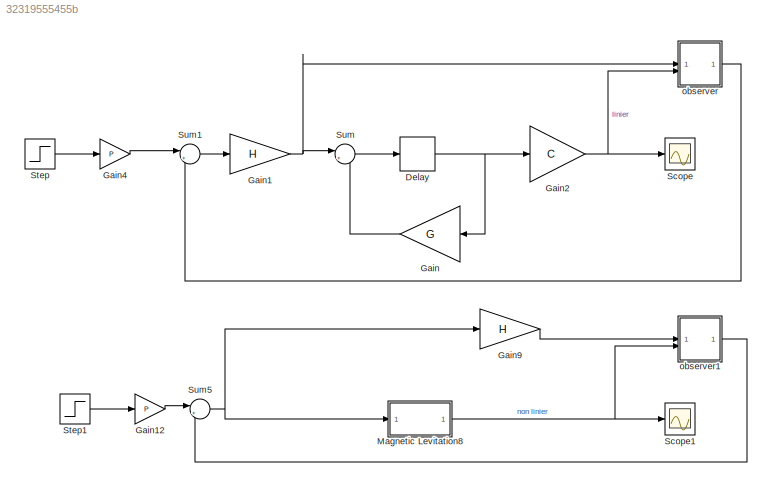
MODEL slx_32319555455b
KIND model
CONFIG AbsTol = auto
CONFIG EnableMultiTasking = off
CONFIG FixedStep = 1e-5
CONFIG MaxStep = auto
CONFIG MinStep = auto
CONFIG RelTol = 1e-3
CONFIG SampleTimeConstraint = Unconstrained
CONFIG SolverName = FixedStepAuto
CONFIG StartTime = 0.0
CONFIG StopTime = 0.1
BLOCK [Delay] Delay
  DelayLength = 1
  InputPortMap = u0
  SampleTime = Ts
BLOCK [Gain] Gain
  Gain = G
  Multiplication = Matrix(K*u) (u vector)
  NameLocation = top
BLOCK [Gain] Gain1
  Gain = H
  Multiplication = Matrix(K*u) (u vector)
BLOCK [Gain] Gain12
  Gain = P
BLOCK [Gain] Gain2
  Gain = C
  Multiplication = Matrix(K*u) (u vector)
BLOCK [Gain] Gain4
  Gain = P
BLOCK [Gain] Gain9
  Gain = H
  Multiplication = Matrix(K*u) (u vector)
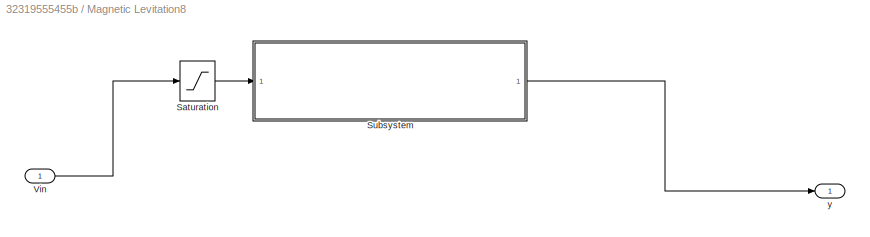
BLOCK [SubSystem] Magnetic Levitation8
  Permissions = ReadOnly
BLOCK [Saturate] Magnetic Levitation8/Saturation
  LowerLimit = -6
  UpperLimit = 10
  ZeroCross = off
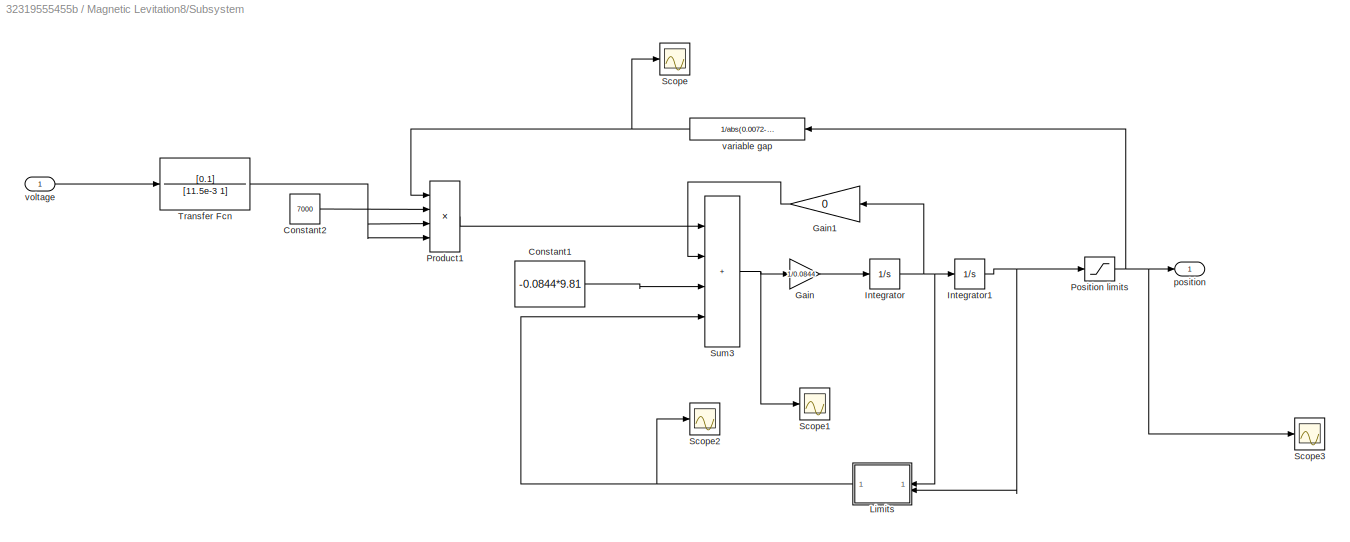
BLOCK [SubSystem] Magnetic Levitation8/Subsystem
BLOCK [Constant] Magnetic Levitation8/Subsystem/Constant1
  Value = -0.0844*9.81
BLOCK [Constant] Magnetic Levitation8/Subsystem/Constant2
  Value = 7000
BLOCK [Gain] Magnetic Levitation8/Subsystem/Gain
  Gain = 1/0.0844
BLOCK [Gain] Magnetic Levitation8/Subsystem/Gain1
  Gain = 0
  NameLocation = top
BLOCK [Integrator] Magnetic Levitation8/Subsystem/Integrator
BLOCK [Integrator] Magnetic Levitation8/Subsystem/Integrator1
  LimitOutput = on
  LowerSaturationLimit = 0
  UpperSaturationLimit = 0.005
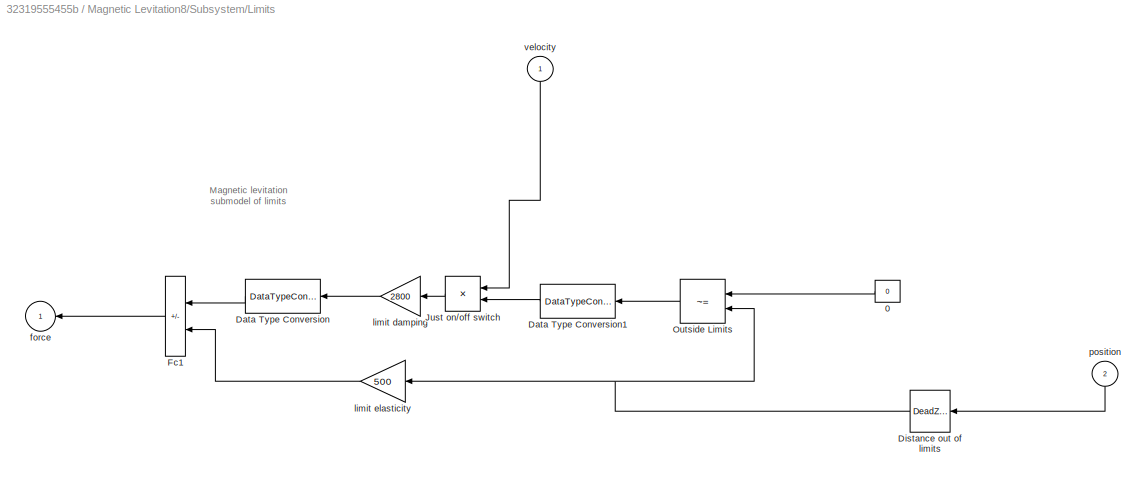
BLOCK [SubSystem] Magnetic Levitation8/Subsystem/Limits
  ShowPortLabels = none
BLOCK [Constant] Magnetic Levitation8/Subsystem/Limits/0
  Value = 0
BLOCK [DataTypeConversion] Magnetic Levitation8/Subsystem/Limits/Data Type Conversion
  NameLocation = top
  OutDataTypeStr = double
  RndMeth = Floor
  SaturateOnIntegerOverflow = off
BLOCK [DataTypeConversion] Magnetic Levitation8/Subsystem/Limits/Data Type Conversion1
  NameLocation = top
  OutDataTypeStr = double
  RndMeth = Floor
  SaturateOnIntegerOverflow = off
BLOCK [DeadZone] Magnetic Levitation8/Subsystem/Limits/Distance out of limits
  LowerValue = 0.0002
  UpperValue = 5e-3
  ZeroCross = off
BLOCK [Sum] Magnetic Levitation8/Subsystem/Limits/Fc1
  IconShape = rectangular
  InputSameDT = on
  Inputs = --
  OutDataTypeStr = Inherit: Same as first input
  SaturateOnIntegerOverflow = on
BLOCK [Product] Magnetic Levitation8/Subsystem/Limits/Just on//off switch 
  InputSameDT = on
  OutDataTypeStr = Inherit: Same as first input
  SaturateOnIntegerOverflow = on
BLOCK [RelationalOperator] Magnetic Levitation8/Subsystem/Limits/Outside Limits
  Operator = ~=
BLOCK [Outport] Magnetic Levitation8/Subsystem/Limits/force
  VectorParamsAs1DForOutWhenUnconnected = off
BLOCK [Gain] Magnetic Levitation8/Subsystem/Limits/limit damping
  Gain = 2800
  OutDataTypeStr = Inherit: Same as input
  ParamDataTypeStr = Inherit: Same as input
  SaturateOnIntegerOverflow = on
BLOCK [Gain] Magnetic Levitation8/Subsystem/Limits/limit elasticity
  Gain = 500
  OutDataTypeStr = Inherit: Same as input
  ParamDataTypeStr = Inherit: Same as input
  SaturateOnIntegerOverflow = on
BLOCK [Inport] Magnetic Levitation8/Subsystem/Limits/position
  NameLocation = right
  Port = 2
BLOCK [Inport] Magnetic Levitation8/Subsystem/Limits/velocity
  NameLocation = right
BLOCK [Saturate] Magnetic Levitation8/Subsystem/Position limits
  LowerLimit = 0.00001
  UpperLimit = 0.00499
  ZeroCross = off
BLOCK [Product] Magnetic Levitation8/Subsystem/Product1
  Inputs = 4
BLOCK [Scope] Magnetic Levitation8/Subsystem/Scope
  Floating = off
  NumInputPorts = 1
  ScopeSpecificationString = Simulink.scopes.TimeScopeBlockCfg('CurrentConfiguration', extmgr.ConfigurationSet(extmgr.Configuration('Core','General UI',true),extmgr.Configuration('Core','Source UI',true),extmgr.Configuration('Sources','WiredSimulink',true,'DataLoggingVariableName','ScopeData1'),extmgr.Configuration('Visuals','Time Domain',true,'SerializedDisplays',{struct('MinYLimReal','-40.54054','MaxYLimReal','374.87487','Y...<+1381ch>
BLOCK [Scope] Magnetic Levitation8/Subsystem/Scope1
  Floating = off
  NumInputPorts = 1
  ScopeSpecificationString = Simulink.scopes.TimeScopeBlockCfg('CurrentConfiguration', extmgr.ConfigurationSet(extmgr.Configuration('Core','General UI',true),extmgr.Configuration('Core','Source UI',true),extmgr.Configuration('Sources','WiredSimulink',true,'DataLoggingVariableName','ScopeData2'),extmgr.Configuration('Visuals','Time Domain',true,'SerializedDisplays',{struct('MinYLimReal','-21376391083219120442781708779858395089...<+3841ch>
BLOCK [Scope] Magnetic Levitation8/Subsystem/Scope2
  Floating = off
  NumInputPorts = 1
  ScopeSpecificationString = Simulink.scopes.TimeScopeBlockCfg('CurrentConfiguration', extmgr.ConfigurationSet(extmgr.Configuration('Core','General UI',true),extmgr.Configuration('Core','Source UI',true),extmgr.Configuration('Sources','WiredSimulink',true,'DataLoggingVariableName','ScopeData3'),extmgr.Configuration('Visuals','Time Domain',true,'SerializedDisplays',{struct('MinYLimReal','-0.1107','MaxYLimReal','1.19629','YLabe...<+1363ch>
BLOCK [Scope] Magnetic Levitation8/Subsystem/Scope3
  Floating = off
  NumInputPorts = 1
  ScopeSpecificationString = Simulink.scopes.TimeScopeBlockCfg('CurrentConfiguration', extmgr.ConfigurationSet(extmgr.Configuration('Core','General UI',true),extmgr.Configuration('Core','Source UI',true),extmgr.Configuration('Sources','WiredSimulink',true,'DataLoggingVariableName','ScopeData2'),extmgr.Configuration('Visuals','Time Domain',true,'SerializedDisplays',{struct('MinYLimReal','-0.00029','MaxYLimReal','0.00267','YLab...<+1402ch>
BLOCK [Sum] Magnetic Levitation8/Subsystem/Sum3
  IconShape = rectangular
  Inputs = ++++
BLOCK [TransferFcn] Magnetic Levitation8/Subsystem/Transfer Fcn
  Denominator = [11.5e-3 1]
  Numerator = [0.1]
BLOCK [Outport] Magnetic Levitation8/Subsystem/position 
  VectorParamsAs1DForOutWhenUnconnected = off
BLOCK [Fcn] Magnetic Levitation8/Subsystem/variable gap
  Expr = 1/abs(0.0072-u)
BLOCK [Inport] Magnetic Levitation8/Subsystem/voltage
BLOCK [Inport] Magnetic Levitation8/Vin
BLOCK [Outport] Magnetic Levitation8/y
  VectorParamsAs1DForOutWhenUnconnected = off
BLOCK [Scope] Scope
  Floating = off
  NumInputPorts = 1
  ScopeSpecificationString = Simulink.scopes.TimeScopeBlockCfg('CurrentConfiguration', extmgr.ConfigurationSet(extmgr.Configuration('Core','General UI',true),extmgr.Configuration('Core','Source UI',true),extmgr.Configuration('Sources','WiredSimulink',true),extmgr.Configuration('Visuals','Time Domain',true,'SerializedDisplays',{struct('MinYLimReal','-0.00025','MaxYLimReal','0.00225','YLabelReal','','MinYLimMag','0.00000','MaxY...<+1545ch>
BLOCK [Scope] Scope1
  Floating = off
  NumInputPorts = 1
  ScopeSpecificationString = Simulink.scopes.TimeScopeBlockCfg('CurrentConfiguration', extmgr.ConfigurationSet(extmgr.Configuration('Core','General UI',true),extmgr.Configuration('Core','Source UI',true),extmgr.Configuration('Sources','WiredSimulink',true,'DataLoggingVariableName','ScopeData1'),extmgr.Configuration('Visuals','Time Domain',true,'SerializedDisplays',{struct('MinYLimReal','-0.00061','MaxYLimReal','0.00561','YLab...<+1639ch>
BLOCK [Step] Step
  After = 0.002
  SampleTime = 0
  Time = 0
BLOCK [Step] Step1
  After = 1e-6
  SampleTime = 0
  Time = 0
BLOCK [Sum] Sum
  Inputs = |++
BLOCK [Sum] Sum1
  Inputs = |+-
BLOCK [Sum] Sum5
  Inputs = |+-
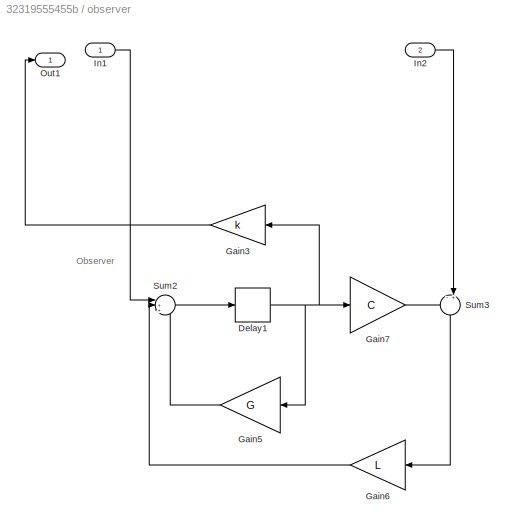
BLOCK [SubSystem] observer
BLOCK [Delay] observer/Delay1
  DelayLength = 1
  InputPortMap = u0
  SampleTime = Ts
BLOCK [Gain] observer/Gain3
  Gain = k
  Multiplication = Matrix(K*u) (u vector)
  NameLocation = top
BLOCK [Gain] observer/Gain5
  Gain = G
  Multiplication = Matrix(K*u) (u vector)
  NameLocation = top
BLOCK [Gain] observer/Gain6
  Gain = L
  NameLocation = top
BLOCK [Gain] observer/Gain7
  Gain = C
  Multiplication = Matrix(K*u) (u vector)
BLOCK [Inport] observer/In1
BLOCK [Inport] observer/In2
  Port = 2
BLOCK [Outport] observer/Out1
BLOCK [Sum] observer/Sum2
  Inputs = |+++
BLOCK [Sum] observer/Sum3
  Inputs = -+|
  NameLocation = left
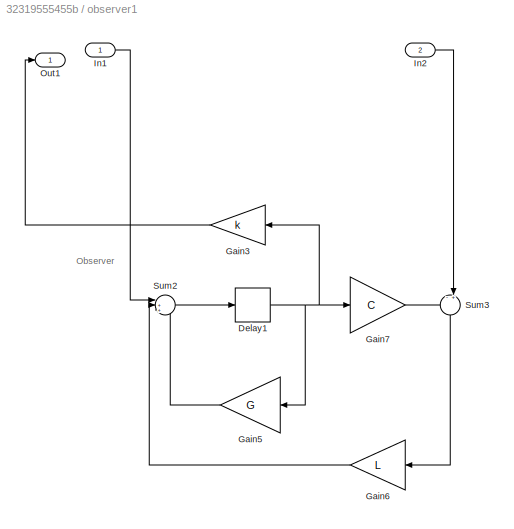
BLOCK [SubSystem] observer1
BLOCK [Delay] observer1/Delay1
  DelayLength = 1
  InputPortMap = u0
  SampleTime = Ts
BLOCK [Gain] observer1/Gain3
  Gain = k
  Multiplication = Matrix(K*u) (u vector)
  NameLocation = top
BLOCK [Gain] observer1/Gain5
  Gain = G
  Multiplication = Matrix(K*u) (u vector)
  NameLocation = top
BLOCK [Gain] observer1/Gain6
  Gain = L
  NameLocation = top
BLOCK [Gain] observer1/Gain7
  Gain = C
  Multiplication = Matrix(K*u) (u vector)
BLOCK [Inport] observer1/In1
BLOCK [Inport] observer1/In2
  Port = 2
BLOCK [Outport] observer1/Out1
BLOCK [Sum] observer1/Sum2
  Inputs = |+++
BLOCK [Sum] observer1/Sum3
  Inputs = -+|
  NameLocation = left
ANNOTATION Magnetic Levitation8/Subsystem/Limits: Magnetic levitation submodel of limits
ANNOTATION observer: Observer
ANNOTATION observer1: Observer
NET Delay:1 -> Gain2:1, Gain:1
LINE Gain12:1 -> Sum5:1
NET Gain1:1 -> Sum:1, observer:1
NET Gain2:1 -> Scope:1, observer:2
LINE Gain4:1 -> Sum1:1
LINE Gain9:1 -> observer1:1
LINE Gain:1 -> Sum:2
LINE Magnetic Levitation8/Saturation:1 -> Magnetic Levitation8/Subsystem:1
LINE Magnetic Levitation8/Subsystem/Constant1:1 -> Magnetic Levitation8/Subsystem/Sum3:3
LINE Magnetic Levitation8/Subsystem/Constant2:1 -> Magnetic Levitation8/Subsystem/Product1:2
LINE Magnetic Levitation8/Subsystem/Gain1:1 -> Magnetic Levitation8/Subsystem/Sum3:2
LINE Magnetic Levitation8/Subsystem/Gain:1 -> Magnetic Levitation8/Subsystem/Integrator:1
NET Magnetic Levitation8/Subsystem/Integrator1:1 -> Magnetic Levitation8/Subsystem/Limits:2, Magnetic Levitation8/Subsystem/Position limits:1
NET Magnetic Levitation8/Subsystem/Integrator:1 -> Magnetic Levitation8/Subsystem/Gain1:1, Magnetic Levitation8/Subsystem/Integrator1:1, Magnetic Levitation8/Subsystem/Limits:1
LINE Magnetic Levitation8/Subsystem/Limits/0:1 -> Magnetic Levitation8/Subsystem/Limits/Outside Limits:1
LINE Magnetic Levitation8/Subsystem/Limits/Data Type Conversion1:1 -> Magnetic Levitation8/Subsystem/Limits/Just on//off switch :2
LINE Magnetic Levitation8/Subsystem/Limits/Data Type Conversion:1 -> Magnetic Levitation8/Subsystem/Limits/Fc1:1
NET Magnetic Levitation8/Subsystem/Limits/Distance out of limits:1 -> Magnetic Levitation8/Subsystem/Limits/Outside Limits:2, Magnetic Levitation8/Subsystem/Limits/limit elasticity:1
LINE Magnetic Levitation8/Subsystem/Limits/Fc1:1 -> Magnetic Levitation8/Subsystem/Limits/force:1
LINE Magnetic Levitation8/Subsystem/Limits/Just on//off switch :1 -> Magnetic Levitation8/Subsystem/Limits/limit damping:1
LINE Magnetic Levitation8/Subsystem/Limits/Outside Limits:1 -> Magnetic Levitation8/Subsystem/Limits/Data Type Conversion1:1
LINE Magnetic Levitation8/Subsystem/Limits/limit damping:1 -> Magnetic Levitation8/Subsystem/Limits/Data Type Conversion:1
LINE Magnetic Levitation8/Subsystem/Limits/limit elasticity:1 -> Magnetic Levitation8/Subsystem/Limits/Fc1:2
LINE Magnetic Levitation8/Subsystem/Limits/position:1 -> Magnetic Levitation8/Subsystem/Limits/Distance out of limits:1
LINE Magnetic Levitation8/Subsystem/Limits/velocity:1 -> Magnetic Levitation8/Subsystem/Limits/Just on//off switch :1
NET Magnetic Levitation8/Subsystem/Limits:1 -> Magnetic Levitation8/Subsystem/Scope2:1, Magnetic Levitation8/Subsystem/Sum3:4
NET Magnetic Levitation8/Subsystem/Position limits:1 -> Magnetic Levitation8/Subsystem/Scope3:1, Magnetic Levitation8/Subsystem/position :1, Magnetic Levitation8/Subsystem/variable gap:1
LINE Magnetic Levitation8/Subsystem/Product1:1 -> Magnetic Levitation8/Subsystem/Sum3:1
NET Magnetic Levitation8/Subsystem/Sum3:1 -> Magnetic Levitation8/Subsystem/Gain:1, Magnetic Levitation8/Subsystem/Scope1:1
NET Magnetic Levitation8/Subsystem/Transfer Fcn:1 -> Magnetic Levitation8/Subsystem/Product1:3, Magnetic Levitation8/Subsystem/Product1:4
NET Magnetic Levitation8/Subsystem/variable gap:1 -> Magnetic Levitation8/Subsystem/Product1:1, Magnetic Levitation8/Subsystem/Scope:1
LINE Magnetic Levitation8/Subsystem/voltage:1 -> Magnetic Levitation8/Subsystem/Transfer Fcn:1
LINE Magnetic Levitation8/Subsystem:1 -> Magnetic Levitation8/y:1
LINE Magnetic Levitation8/Vin:1 -> Magnetic Levitation8/Saturation:1
NET Magnetic Levitation8:1 -> Scope1:1, observer1:2
LINE Step1:1 -> Gain12:1
LINE Step:1 -> Gain4:1
LINE Sum1:1 -> Gain1:1
NET Sum5:1 -> Gain9:1, Magnetic Levitation8:1
LINE Sum:1 -> Delay:1
NET observer/Delay1:1 -> observer/Gain3:1, observer/Gain5:1, observer/Gain7:1
LINE observer/Gain3:1 -> observer/Out1:1
LINE observer/Gain5:1 -> observer/Sum2:3
LINE observer/Gain6:1 -> observer/Sum2:2
LINE observer/Gain7:1 -> observer/Sum3:1
LINE observer/In1:1 -> observer/Sum2:1
LINE observer/In2:1 -> observer/Sum3:2
LINE observer/Sum2:1 -> observer/Delay1:1
LINE observer/Sum3:1 -> observer/Gain6:1
NET observer1/Delay1:1 -> observer1/Gain3:1, observer1/Gain5:1, observer1/Gain7:1
LINE observer1/Gain3:1 -> observer1/Out1:1
LINE observer1/Gain5:1 -> observer1/Sum2:3
LINE observer1/Gain6:1 -> observer1/Sum2:2
LINE observer1/Gain7:1 -> observer1/Sum3:1
LINE observer1/In1:1 -> observer1/Sum2:1
LINE observer1/In2:1 -> observer1/Sum3:2
LINE observer1/Sum2:1 -> observer1/Delay1:1
LINE observer1/Sum3:1 -> observer1/Gain6:1
LINE observer1:1 -> Sum5:2
LINE observer:1 -> Sum1:2
note: NET lines group one-source signal fan-out (src -> all destinations, sorted); 1:1 wires keep LINE
